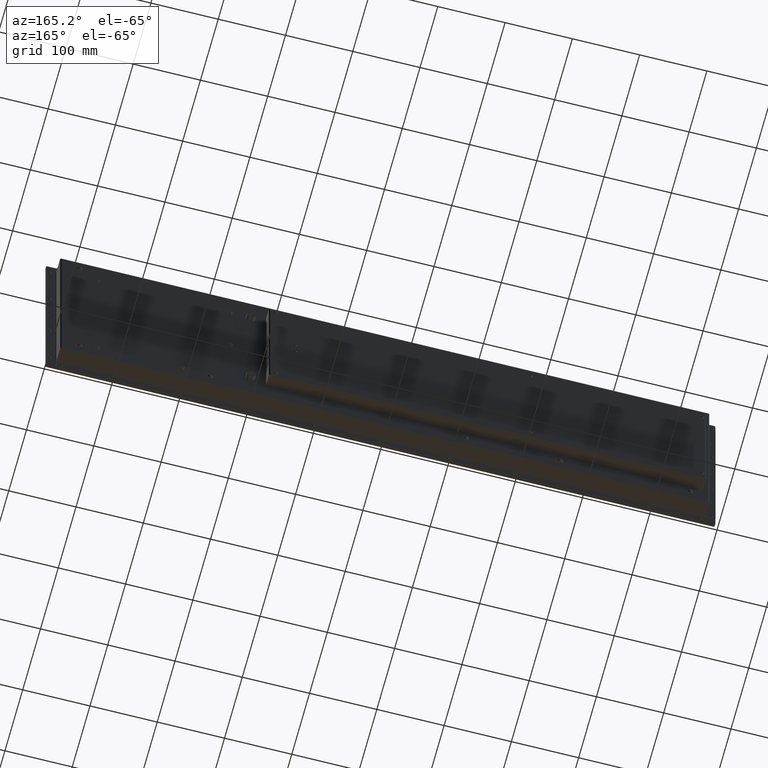
[diagram: clean part render]
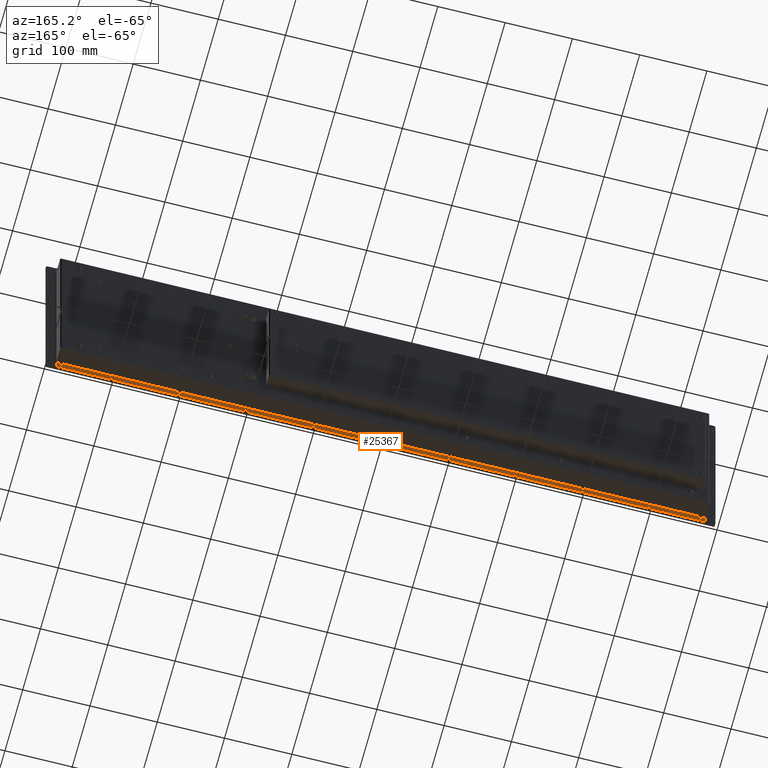
[diagram: same view with one face highlighted and labeled with its STEP entity id]
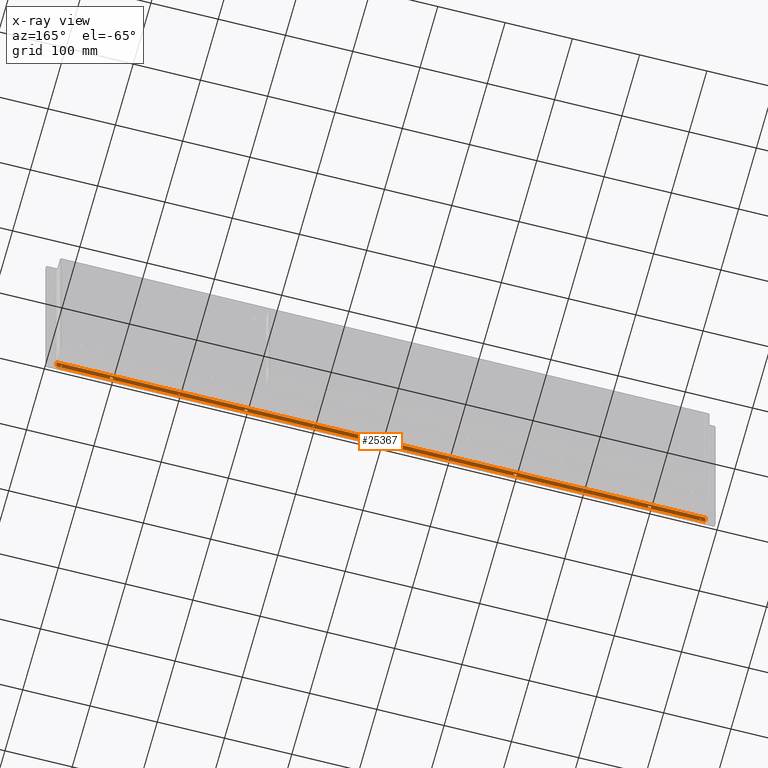
[diagram: x-ray of the same camera — body ghosted, the highlighted face saturated]
A machine part, auxiliary view. The second image highlights one B-rep face of the part: STEP entity #25367.
The next image is the same camera in x-ray: the body ghosted, the highlighted face saturated — about 0% of this face is hidden behind the body in this view.
In plain terms, the highlighted planar face has unit normal (-0, -1, -0).
Its self-contained STEP definition (entity closure, byte-faithful):
#1997=FACE_BOUND('',#5062,.T.);
#1998=FACE_BOUND('',#5063,.T.);
#1999=FACE_BOUND('',#5064,.T.);
#2000=FACE_BOUND('',#5065,.T.);
#2001=FACE_BOUND('',#5066,.T.);
#2002=FACE_BOUND('',#5067,.T.);
#2003=FACE_BOUND('',#5068,.T.);
#2004=FACE_BOUND('',#5069,.T.);
#2005=FACE_BOUND('',#5070,.T.);
#2006=FACE_BOUND('',#5071,.T.);
#2007=FACE_BOUND('',#5072,.T.);
#2562=CIRCLE('',#27240,3.);
#2565=CIRCLE('',#27244,3.);
#2568=CIRCLE('',#27248,3.);
#2595=CIRCLE('',#27284,3.);
#2598=CIRCLE('',#27288,3.);
#2610=CIRCLE('',#27304,1.1);
#2613=CIRCLE('',#27308,1.1);
#2616=CIRCLE('',#27312,1.1);
#2652=CIRCLE('',#27360,1.1);
#2655=CIRCLE('',#27364,1.1);
#2658=CIRCLE('',#27368,1.1);
#2669=CIRCLE('',#27385,3.);
#2670=CIRCLE('',#27388,3.);
#3631=FACE_OUTER_BOUND('',#5061,.T.);
#5061=EDGE_LOOP('',(#17897,#17898,#17899,#17900,#17901,#17902));
#5062=EDGE_LOOP('',(#17903));
#5063=EDGE_LOOP('',(#17904));
#5064=EDGE_LOOP('',(#17905));
#5065=EDGE_LOOP('',(#17906));
#5066=EDGE_LOOP('',(#17907));
#5067=EDGE_LOOP('',(#17908));
#5068=EDGE_LOOP('',(#17909));
#5069=EDGE_LOOP('',(#17910));
#5070=EDGE_LOOP('',(#17911));
#5071=EDGE_LOOP('',(#17912));
#5072=EDGE_LOOP('',(#17913));
#6974=LINE('',#37546,#9187);
#6977=LINE('',#37552,#9190);
#6978=LINE('',#37554,#9191);
#6979=LINE('',#37556,#9192);
#9187=VECTOR('',#30426,10.);
#9190=VECTOR('',#30431,10.);
#9191=VECTOR('',#30432,10.);
#9192=VECTOR('',#30433,10.);
#11407=VERTEX_POINT('',#37237);
#11410=VERTEX_POINT('',#37245);
#11413=VERTEX_POINT('',#37253);
#11440=VERTEX_POINT('',#37325);
#11443=VERTEX_POINT('',#37333);
#11455=VERTEX_POINT('',#37365);
#11458=VERTEX_POINT('',#37373);
#11461=VERTEX_POINT('',#37381);
#11497=VERTEX_POINT('',#37477);
#11500=VERTEX_POINT('',#37485);
#11503=VERTEX_POINT('',#37493);
#11521=VERTEX_POINT('',#37539);
#11522=VERTEX_POINT('',#37541);
#11523=VERTEX_POINT('',#37545);
#11525=VERTEX_POINT('',#37551);
#11526=VERTEX_POINT('',#37553);
#11527=VERTEX_POINT('',#37555);
#13908=EDGE_CURVE('',#11407,#11407,#2562,.T.);
#13912=EDGE_CURVE('',#11410,#11410,#2565,.T.);
#13916=EDGE_CURVE('',#11413,#11413,#2568,.T.);
#13952=EDGE_CURVE('',#11440,#11440,#2595,.T.);
#13956=EDGE_CURVE('',#11443,#11443,#2598,.T.);
#13972=EDGE_CURVE('',#11455,#11455,#2610,.T.);
#13976=EDGE_CURVE('',#11458,#11458,#2613,.T.);
#13980=EDGE_CURVE('',#11461,#11461,#2616,.T.);
#14028=EDGE_CURVE('',#11497,#11497,#2652,.T.);
#14032=EDGE_CURVE('',#11500,#11500,#2655,.T.);
#14036=EDGE_CURVE('',#11503,#11503,#2658,.T.);
#14058=EDGE_CURVE('',#11521,#11522,#2669,.T.);
#14060=EDGE_CURVE('',#11523,#11522,#6974,.T.);
#14063=EDGE_CURVE('',#11525,#11521,#6977,.T.);
#14064=EDGE_CURVE('',#11525,#11526,#6978,.T.);
#14065=EDGE_CURVE('',#11526,#11527,#6979,.T.);
#14066=EDGE_CURVE('',#11523,#11527,#2670,.T.);
#17897=ORIENTED_EDGE('',*,*,#14058,.F.);
#17898=ORIENTED_EDGE('',*,*,#14063,.F.);
#17899=ORIENTED_EDGE('',*,*,#14064,.T.);
#17900=ORIENTED_EDGE('',*,*,#14065,.T.);
#17901=ORIENTED_EDGE('',*,*,#14066,.F.);
#17902=ORIENTED_EDGE('',*,*,#14060,.T.);
#17903=ORIENTED_EDGE('',*,*,#13908,.T.);
#17904=ORIENTED_EDGE('',*,*,#13912,.T.);
#17905=ORIENTED_EDGE('',*,*,#13916,.T.);
#17906=ORIENTED_EDGE('',*,*,#13952,.T.);
#17907=ORIENTED_EDGE('',*,*,#13956,.T.);
#17908=ORIENTED_EDGE('',*,*,#13972,.T.);
#17909=ORIENTED_EDGE('',*,*,#13976,.T.);
#17910=ORIENTED_EDGE('',*,*,#13980,.T.);
#17911=ORIENTED_EDGE('',*,*,#14028,.T.);
#17912=ORIENTED_EDGE('',*,*,#14032,.T.);
#17913=ORIENTED_EDGE('',*,*,#14036,.T.);
#24542=PLANE('',#27387);
#25367=ADVANCED_FACE('',(#3631,#1997,#1998,#1999,#2000,#2001,#2002,#2003,
#2004,#2005,#2006,#2007),#24542,.F.);
#27240=AXIS2_PLACEMENT_3D('',#37239,#30088,#30089);
#27244=AXIS2_PLACEMENT_3D('',#37247,#30097,#30098);
#27248=AXIS2_PLACEMENT_3D('',#37255,#30106,#30107);
#27284=AXIS2_PLACEMENT_3D('',#37327,#30187,#30188);
#27288=AXIS2_PLACEMENT_3D('',#37335,#30196,#30197);
#27304=AXIS2_PLACEMENT_3D('',#37367,#30232,#30233);
#27308=AXIS2_PLACEMENT_3D('',#37375,#30241,#30242);
#27312=AXIS2_PLACEMENT_3D('',#37383,#30250,#30251);
#27360=AXIS2_PLACEMENT_3D('',#37479,#30358,#30359);
#27364=AXIS2_PLACEMENT_3D('',#37487,#30367,#30368);
#27368=AXIS2_PLACEMENT_3D('',#37495,#30376,#30377);
#27385=AXIS2_PLACEMENT_3D('',#37542,#30421,#30422);
#27387=AXIS2_PLACEMENT_3D('',#37550,#30429,#30430);
#27388=AXIS2_PLACEMENT_3D('',#37557,#30434,#30435);
#30088=DIRECTION('center_axis',(-4.83038354946217E-19,-1.52836946630257E-15,
-1.));
#30089=DIRECTION('ref_axis',(-1.,-2.57699118705997E-16,-1.68387416355472E-19));
#30097=DIRECTION('center_axis',(-4.83038354946217E-19,-1.52836946630257E-15,
-1.));
#30098=DIRECTION('ref_axis',(-1.,-2.57699118705997E-16,-1.68387416355472E-19));
#30106=DIRECTION('center_axis',(-4.83038354946217E-19,-1.52836946630257E-15,
-1.));
#30107=DIRECTION('ref_axis',(-1.,-2.57699118705997E-16,-1.68387416355472E-19));
#30187=DIRECTION('center_axis',(-4.83038354946217E-19,-1.52836946630257E-15,
-1.));
#30188=DIRECTION('ref_axis',(-1.,-2.57699118705997E-16,-1.68387416355472E-19));
#30196=DIRECTION('center_axis',(-4.83038354946217E-19,-1.52836946630257E-15,
-1.));
#30197=DIRECTION('ref_axis',(-1.,-2.57699118705997E-16,-1.68387416355472E-19));
#30232=DIRECTION('center_axis',(-4.83038354946217E-19,-1.52836946630257E-15,
-1.));
#30233=DIRECTION('ref_axis',(-1.,-2.57699118705997E-16,-1.68387416355472E-19));
#30241=DIRECTION('center_axis',(-4.83038354946217E-19,-1.52836946630257E-15,
-1.));
#30242=DIRECTION('ref_axis',(-1.,-2.57699118705997E-16,-1.68387416355472E-19));
#30250=DIRECTION('center_axis',(-4.83038354946217E-19,-1.52836946630257E-15,
-1.));
#30251=DIRECTION('ref_axis',(-1.,-2.57699118705997E-16,-1.68387416355472E-19));
#30358=DIRECTION('center_axis',(-4.83038354946217E-19,-1.52836946630257E-15,
-1.));
#30359=DIRECTION('ref_axis',(-1.,-2.57699118705997E-16,-1.68387416355472E-19));
#30367=DIRECTION('center_axis',(-4.83038354946217E-19,-1.52836946630257E-15,
-1.));
#30368=DIRECTION('ref_axis',(-1.,-2.57699118705997E-16,-1.68387416355472E-19));
#30376=DIRECTION('center_axis',(-4.83038354946217E-19,-1.52836946630257E-15,
-1.));
#30377=DIRECTION('ref_axis',(-1.,-2.57699118705997E-16,-1.68387416355472E-19));
#30421=DIRECTION('center_axis',(-4.83038354946217E-19,-1.52836946630257E-15,
-1.));
#30422=DIRECTION('ref_axis',(0.707106781186548,-0.707106781186548,0.));
#30426=DIRECTION('',(1.,1.46930926374919E-16,-3.25712885651183E-19));
#30429=DIRECTION('center_axis',(-4.83038354946217E-19,-1.52836946630257E-15,
-1.));
#30430=DIRECTION('ref_axis',(-1.10116766559777E-16,1.,-1.52836946630257E-15));
#30431=DIRECTION('',(1.10116766559777E-16,-1.,2.7436872607318E-15));
#30432=DIRECTION('',(-1.,-1.10116766559776E-16,4.83038354946389E-19));
#30433=DIRECTION('',(-6.27156547191389E-14,-1.,2.74368726073179E-15));
#30434=DIRECTION('center_axis',(-4.83038354946217E-19,-1.52836946630257E-15,
-1.));
#30435=DIRECTION('ref_axis',(-0.707106781186548,-0.707106781186548,0.));
#37237=CARTESIAN_POINT('',(403.,-162.75,-23.4999999999999));
#37239=CARTESIAN_POINT('Origin',(400.,-162.75,-23.4999999999999));
#37245=CARTESIAN_POINT('',(3.00000000000004,-162.75,-23.4999999999999));
#37247=CARTESIAN_POINT('Origin',(4.19403631819846E-14,-162.75,-23.4999999999999));
#37253=CARTESIAN_POINT('',(-397.,-162.75,-23.4999999999999));
#37255=CARTESIAN_POINT('Origin',(-400.,-162.75,-23.4999999999999));
#37325=CARTESIAN_POINT('',(-197.,-162.75,-23.4999999999999));
#37327=CARTESIAN_POINT('Origin',(-200.,-162.75,-23.4999999999999));
#37333=CARTESIAN_POINT('',(203.,-162.75,-23.4999999999999));
#37335=CARTESIAN_POINT('Origin',(200.,-162.75,-23.4999999999999));
#37365=CARTESIAN_POINT('',(476.1,-162.75,-23.4999999999999));
#37367=CARTESIAN_POINT('Origin',(475.,-162.75,-23.4999999999999));
#37373=CARTESIAN_POINT('',(101.1,-162.75,-23.4999999999999));
#37375=CARTESIAN_POINT('Origin',(100.,-162.75,-23.4999999999999));
#37381=CARTESIAN_POINT('',(-298.9,-162.75,-23.4999999999999));
#37383=CARTESIAN_POINT('Origin',(-300.,-162.75,-23.4999999999999));
#37477=CARTESIAN_POINT('',(-473.9,-162.75,-23.4999999999999));
#37479=CARTESIAN_POINT('Origin',(-475.,-162.75,-23.4999999999999));
#37485=CARTESIAN_POINT('',(-98.9,-162.75,-23.4999999999999));
#37487=CARTESIAN_POINT('Origin',(-100.,-162.75,-23.4999999999999));
#37493=CARTESIAN_POINT('',(301.1,-162.75,-23.4999999999999));
#37495=CARTESIAN_POINT('Origin',(300.,-162.75,-23.4999999999999));
#37539=CARTESIAN_POINT('',(482.52,-164.75,-23.4999999999999));
#37541=CARTESIAN_POINT('',(479.52,-167.75,-23.4999999999999));
#37542=CARTESIAN_POINT('Origin',(479.52,-164.75,-23.4999999999999));
#37545=CARTESIAN_POINT('',(-479.52,-167.75,-23.4999999999999));
#37546=CARTESIAN_POINT('',(-482.52,-167.75,-23.4999999999999));
#37550=CARTESIAN_POINT('Origin',(1.32872934933922E-13,-159.619026644707,
-23.4999999999999));
#37551=CARTESIAN_POINT('',(482.52,-153.75,-23.4999999999999));
#37552=CARTESIAN_POINT('',(482.52,-151.488053289415,-23.4999999999999));
#37553=CARTESIAN_POINT('',(-482.52,-153.75,-23.4999999999999));
#37554=CARTESIAN_POINT('',(1.01719855476843E-13,-153.75,-23.4999999999999));
#37555=CARTESIAN_POINT('',(-482.520000000001,-164.75,-23.4999999999999));
#37556=CARTESIAN_POINT('',(-482.52,-151.488053289415,-23.4999999999999));
#37557=CARTESIAN_POINT('Origin',(-479.52,-164.75,-23.5));